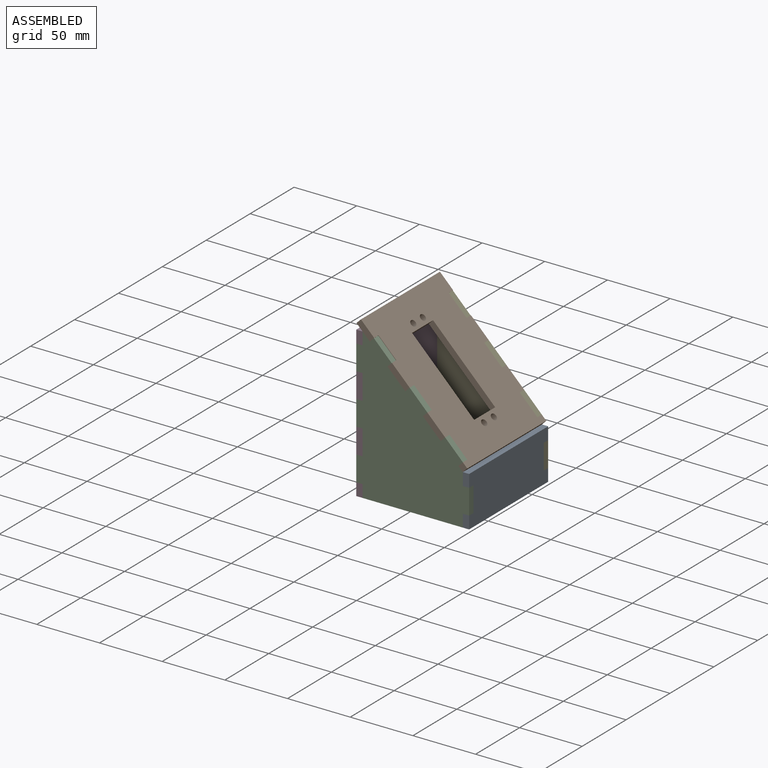
[diagram: assembled view]
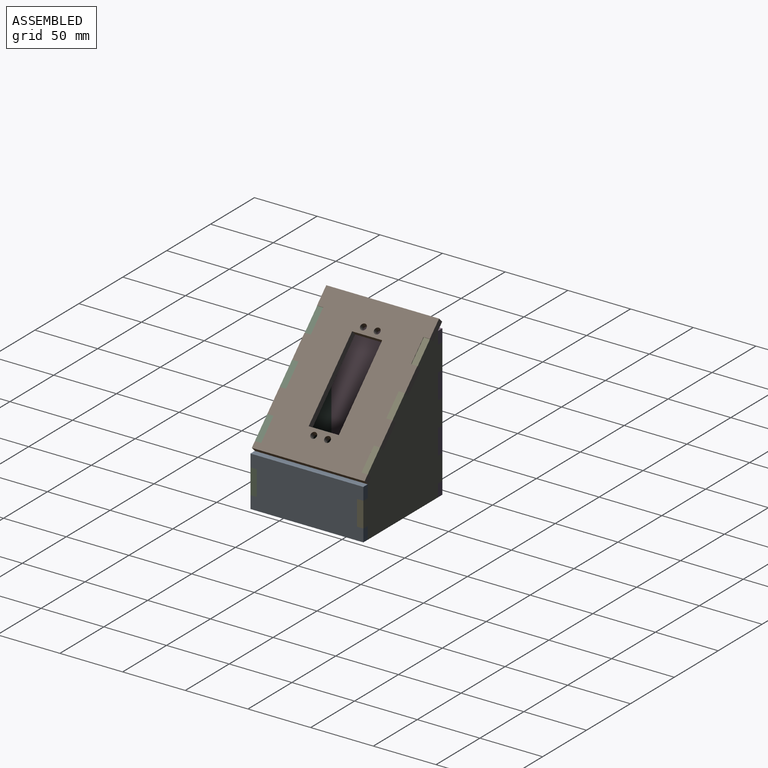
[diagram: assembled view, second angle]
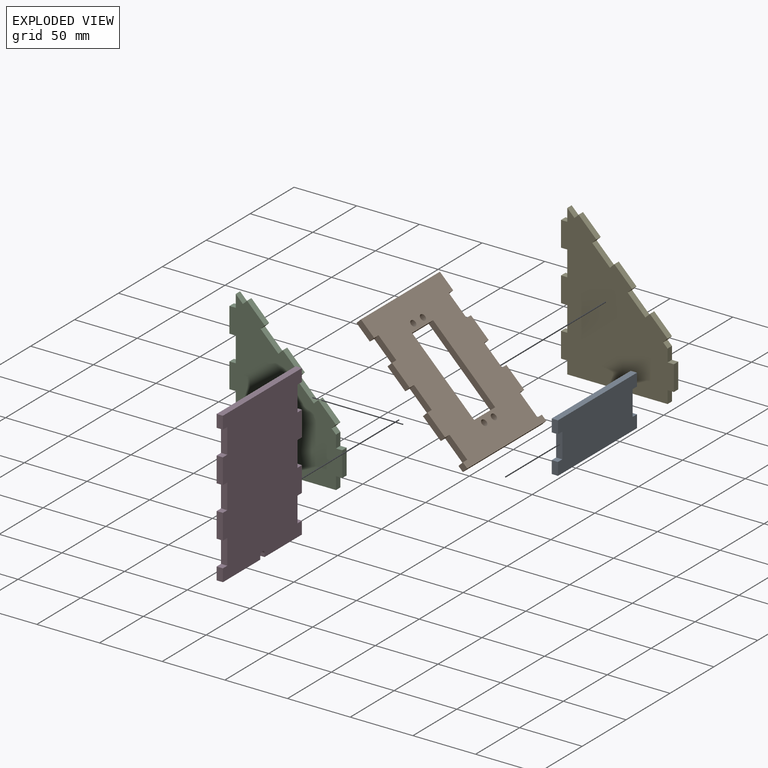
[diagram: exploded view]
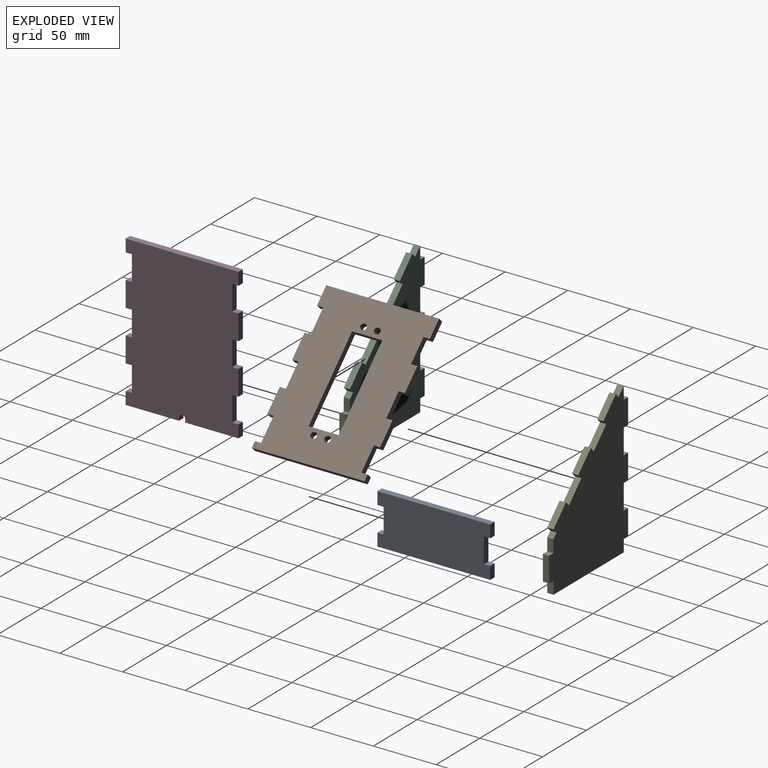
[diagram: exploded view, second angle]
ASSEMBLY  parts=5 mates=4
PART A: 14 faces, bbox 5x90x40 mm
  f0: plane 90x5mm, normal (0,0,-1), area 450mm2, adj f1,f11,f12,f13
  f1: plane 10x5mm, normal (0,1,0), area 50mm2, adj f0,f2,f12,f13
  f2: plane 5x5mm, normal (0,0,1), area 25mm2, adj f1,f3,f12,f13
  f3: plane 20x5mm, normal (0,1,0), area 100mm2, adj f2,f4,f12,f13
  f4: plane 5x5mm, normal (0,0,-1), area 25mm2, adj f3,f5,f12,f13
  f5: plane 10x5mm, normal (0,1,0), area 50mm2, adj f4,f6,f12,f13
  f6: plane 90x5mm, normal (0,0,1), area 450mm2, adj f5,f7,f12,f13
  f7: plane 10x5mm, normal (0,-1,0), area 50mm2, adj f6,f8,f12,f13
  f8: plane 5x5mm, normal (0,0,-1), area 25mm2, adj f7,f9,f12,f13
  f9: plane 20x5mm, normal (0,-1,0), area 100mm2, adj f8,f10,f12,f13
  f10: plane 5x5mm, normal (0,0,1), area 25mm2, adj f9,f11,f12,f13
  f11: plane 10x5mm, normal (0,-1,0), area 50mm2, adj f0,f10,f12,f13
  f12: plane 90x40mm, normal (1,0,0), area 3400mm2, adj f0,f1,f2,f3,f4,f5,f6,f7
  f13: plane 90x40mm, normal (-1,0,0), area 3400mm2, adj f0,f1,f2,f3,f4,f5,f6,f7
PART B: 38 faces, bbox 120x90x5 mm
  f0: plane 120x90mm, normal (0,0,1), area 8441.5mm2, adj f2,f3,f4,f5,f6,f7,f8,f9
  f1: plane 120x90mm, normal (0,0,-1), area 8441.5mm2, adj f2,f3,f4,f5,f6,f7,f8,f9
  f2: plane 5x5mm, normal (1,0,0), area 25mm2, adj f0,f1,f3,f29
  f3: plane 20x5mm, normal (0,-1,0), area 100mm2, adj f0,f1,f2,f4
  f4: plane 5x5mm, normal (-1,0,0), area 25mm2, adj f0,f1,f3,f5
  f5: plane 5x5mm, normal (0,-1,0), area 25mm2, adj f0,f1,f4,f6
  f6: plane 90x5mm, normal (1,0,0), area 450mm2, adj f0,f1,f5,f7
  f7: plane 5x5mm, normal (0,1,0), area 25mm2, adj f0,f1,f6,f8
  f8: plane 5x5mm, normal (-1,0,0), area 25mm2, adj f0,f1,f7,f9
  f9: plane 20x5mm, normal (0,1,0), area 100mm2, adj f0,f1,f8,f10
  f10: plane 5x5mm, normal (1,0,0), area 25mm2, adj f0,f1,f9,f11
  f11: plane 20x5mm, normal (0,1,0), area 100mm2, adj f0,f1,f10,f12
  f12: plane 5x5mm, normal (-1,0,0), area 25mm2, adj f0,f1,f11,f13
  f13: plane 20x5mm, normal (0,1,0), area 100mm2, adj f0,f1,f12,f14
  f14: plane 5x5mm, normal (1,0,0), area 25mm2, adj f0,f1,f13,f15
  f15: plane 20x5mm, normal (0,1,0), area 100mm2, adj f0,f1,f14,f16
  f16: plane 5x5mm, normal (-1,0,0), area 25mm2, adj f0,f1,f15,f17
  f17: plane 20x5mm, normal (0,1,0), area 100mm2, adj f0,f1,f16,f18
  f18: plane 5x5mm, normal (1,0,0), area 25mm2, adj f0,f1,f17,f19
  f19: plane 15x5mm, normal (0,1,0), area 75mm2, adj f0,f1,f18,f20
  f20: plane 90x5mm, normal (-1,0,0), area 450mm2, adj f0,f1,f19,f21
  f21: plane 15x5mm, normal (0,-1,0), area 75mm2, adj f0,f1,f20,f22
  f22: plane 5x5mm, normal (1,0,0), area 25mm2, adj f0,f1,f21,f23
  f23: plane 20x5mm, normal (0,-1,0), area 100mm2, adj f0,f1,f22,f24
  f24: plane 5x5mm, normal (-1,0,0), area 25mm2, adj f0,f1,f23,f25
  f25: plane 20x5mm, normal (0,-1,0), area 100mm2, adj f0,f1,f24,f26
  f26: plane 5x5mm, normal (1,0,0), area 25mm2, adj f0,f1,f25,f27
  f27: plane 20x5mm, normal (0,-1,0), area 100mm2, adj f0,f1,f26,f28
  f28: plane 5x5mm, normal (-1,0,0), area 25mm2, adj f0,f1,f27,f29
  f29: plane 20x5mm, normal (0,-1,0), area 100mm2, adj f0,f1,f2,f28
  f30: cylinder r=2.5mm len=5mm, axis (0,0,1), area 78.5mm2, adj f0,f1
  f31: cylinder r=2.5mm len=5mm, axis (0,0,1), area 78.5mm2, adj f0,f1
  f32: cylinder r=2.5mm len=5mm, axis (0,0,1), area 78.5mm2, adj f0,f1
  f33: plane 24x5mm, normal (-1,0,0), area 120mm2, adj f0,f1,f34,f36
  f34: plane 70x5mm, normal (0,-1,0), area 350mm2, adj f0,f1,f33,f35
  f35: plane 24x5mm, normal (1,0,0), area 120mm2, adj f0,f1,f34,f36
  f36: plane 70x5mm, normal (0,1,0), area 350mm2, adj f0,f1,f33,f35
  f37: cylinder r=2.5mm len=5mm, axis (0,0,1), area 78.5mm2, adj f0,f1
PART C: 34 faces, bbox 90x120x5 mm
  f0: plane 14.14x14.14mm, normal (0.71,0.71,0), area 100mm2, adj f23,f24,f30,f31
  f1: plane 14.14x14.14mm, normal (0.71,0.71,0), area 100mm2, adj f23,f24,f27,f28
  f2: plane 5x3.54mm, normal (0.71,0.71,0), area 25mm2, adj f10,f23,f24,f25
  f3: plane 5x5mm, normal (0,-1,0), area 25mm2, adj f4,f22,f23,f24
  f4: plane 10x5mm, normal (-1,0,0), area 50mm2, adj f3,f5,f23,f24
  f5: plane 80x5mm, normal (0,-1,0), area 400mm2, adj f4,f6,f23,f24
  f6: plane 10x5mm, normal (1,0,0), area 50mm2, adj f5,f7,f23,f24
  f7: plane 5x5mm, normal (0,-1,0), area 25mm2, adj f6,f8,f23,f24
  f8: plane 20x5mm, normal (1,0,0), area 100mm2, adj f7,f9,f23,f24
  f9: plane 5x5mm, normal (0,1,0), area 25mm2, adj f8,f10,f23,f24
  f10: plane 10x5mm, normal (1,0,0), area 50mm2, adj f2,f9,f23,f24
  f11: plane 5.75x5.75mm, normal (0.71,0.71,0), area 40.7mm2, adj f12,f23,f24,f33
  f12: plane 10x5mm, normal (-1,0,0), area 50mm2, adj f11,f13,f23,f24
  f13: plane 5x5mm, normal (0,1,0), area 25mm2, adj f12,f14,f23,f24
  f14: plane 20x5mm, normal (-1,0,0), area 100mm2, adj f13,f15,f23,f24
  f15: plane 5x5mm, normal (0,-1,0), area 25mm2, adj f14,f16,f23,f24
  f16: plane 20x5mm, normal (-1,0,0), area 100mm2, adj f15,f17,f23,f24
  f17: plane 5x5mm, normal (0,1,0), area 25mm2, adj f16,f18,f23,f24
  f18: plane 20x5mm, normal (-1,0,0), area 100mm2, adj f17,f19,f23,f24
  f19: plane 5x5mm, normal (0,-1,0), area 25mm2, adj f18,f20,f23,f24
  f20: plane 20x5mm, normal (-1,0,0), area 100mm2, adj f19,f21,f23,f24
  f21: plane 5x5mm, normal (0,1,0), area 25mm2, adj f20,f22,f23,f24
  f22: plane 20x5mm, normal (-1,0,0), area 100mm2, adj f3,f21,f23,f24
  f23: plane 120x90mm, normal (0,0,1), area 7093mm2, adj f0,f1,f2,f3,f4,f5,f6,f7
  f24: plane 120x90mm, normal (0,0,-1), area 7093mm2, adj f0,f1,f2,f3,f4,f5,f6,f7
  f25: plane 5x3.54mm, normal (0.71,-0.71,0), area 25mm2, adj f2,f23,f24,f26
  f26: plane 14.14x14.14mm, normal (0.71,0.71,0), area 100mm2, adj f23,f24,f25,f27
  f27: plane 5x3.54mm, normal (-0.71,0.71,0), area 25mm2, adj f1,f23,f24,f26
  f28: plane 5x3.54mm, normal (0.71,-0.71,0), area 25mm2, adj f1,f23,f24,f29
  f29: plane 14.14x14.14mm, normal (0.71,0.71,0), area 100mm2, adj f23,f24,f28,f30
  f30: plane 5x3.54mm, normal (-0.71,0.71,0), area 25mm2, adj f0,f23,f24,f29
  f31: plane 5x3.29mm, normal (0.71,-0.71,0), area 23.3mm2, adj f0,f23,f24,f32
  f32: plane 14.14x14.14mm, normal (0.71,0.71,0), area 100mm2, adj f23,f24,f31,f33
  f33: plane 5x3.29mm, normal (-0.71,0.71,0), area 23.3mm2, adj f11,f23,f24,f32
PART D: 34 faces, bbox 5x90x120 mm
  f0: plane 42.5x5mm, normal (0,0,-1), area 212.5mm2, adj f1,f19,f30,f31
  f1: plane 120x90mm, normal (-1,0,0), area 10177.7mm2, adj f0,f2,f3,f4,f5,f6,f7,f8
  f2: plane 5x5mm, normal (0,0,1), area 25mm2, adj f1,f3,f29,f30
  f3: plane 20x5mm, normal (0,1,0), area 100mm2, adj f1,f2,f4,f30
  f4: plane 5x5mm, normal (0,0,-1), area 25mm2, adj f1,f3,f5,f30
  f5: plane 10x5mm, normal (0,1,0), area 50mm2, adj f1,f4,f6,f30
  f6: plane 90x5mm, normal (0,0,1), area 450mm2, adj f1,f5,f7,f30
  f7: plane 10x5mm, normal (0,-1,0), area 50mm2, adj f1,f6,f8,f30
  f8: plane 5x5mm, normal (0,0,-1), area 25mm2, adj f1,f7,f9,f30
  f9: plane 20x5mm, normal (0,-1,0), area 100mm2, adj f1,f8,f10,f30
  f10: plane 5x5mm, normal (0,0,1), area 25mm2, adj f1,f9,f11,f30
  f11: plane 20x5mm, normal (0,-1,0), area 100mm2, adj f1,f10,f12,f30
  f12: plane 5x5mm, normal (0,0,-1), area 25mm2, adj f1,f11,f13,f30
  f13: plane 20x5mm, normal (0,-1,0), area 100mm2, adj f1,f12,f14,f30
  f14: plane 5x5mm, normal (0,0,1), area 25mm2, adj f1,f13,f15,f30
  f15: plane 20x5mm, normal (0,-1,0), area 100mm2, adj f1,f14,f16,f30
  f16: plane 5x5mm, normal (0,0,-1), area 25mm2, adj f1,f15,f17,f30
  f17: plane 20x5mm, normal (0,-1,0), area 100mm2, adj f1,f16,f18,f30
  f18: plane 5x5mm, normal (0,0,1), area 25mm2, adj f1,f17,f19,f30
  f19: plane 10x5mm, normal (0,-1,0), area 50mm2, adj f0,f1,f18,f30
  f20: plane 42.5x5mm, normal (0,0,-1), area 212.5mm2, adj f1,f21,f30,f33
  f21: plane 10x5mm, normal (0,1,0), area 50mm2, adj f1,f20,f22,f30
  f22: plane 5x5mm, normal (0,0,1), area 25mm2, adj f1,f21,f23,f30
  f23: plane 20x5mm, normal (0,1,0), area 100mm2, adj f1,f22,f24,f30
  f24: plane 5x5mm, normal (0,0,-1), area 25mm2, adj f1,f23,f25,f30
  f25: plane 20x5mm, normal (0,1,0), area 100mm2, adj f1,f24,f26,f30
  f26: plane 5x5mm, normal (0,0,1), area 25mm2, adj f1,f25,f27,f30
  f27: plane 20x5mm, normal (0,1,0), area 100mm2, adj f1,f26,f28,f30
  f28: plane 5x5mm, normal (0,0,-1), area 25mm2, adj f1,f27,f29,f30
  f29: plane 20x5mm, normal (0,1,0), area 100mm2, adj f1,f2,f28,f30
  f30: plane 120x90mm, normal (1,0,0), area 10177.7mm2, adj f0,f2,f3,f4,f5,f6,f7,f8
  f31: plane 5x2.5mm, normal (0,1,0), area 12.5mm2, adj f0,f1,f30,f32
  f32: cylinder r=2.5mm len=5mm, axis (-1,0,0), area 39.3mm2, adj f1,f30,f31,f33
  f33: plane 5x2.5mm, normal (0,-1,0), area 12.5mm2, adj f1,f20,f30,f32
PART E: same geometry as C
PLACE A t=(45.61,-17.59,-28.05)mm
PLACE B rot(axis=(0,1,0),45deg) t=(45.61,-17.59,11.95)mm
PLACE C rot(axis=(1,0,0),90deg) t=(-34.39,-17.59,-28.05)mm
PLACE D t=(-39.39,62.41,-28.05)mm
PLACE E rot(axis=(1,0,0),90deg) t=(-34.39,67.41,-28.05)mm
MATE fastened E.f24 <-> D.f5  axis (0,1,0) through (-34.39,67.41,91.95)mm
MATE fastened C.f23 <-> A.f7  axis (0,-1,0) through (50.61,-22.59,1.95)mm
MATE fastened D.f7 <-> C.f23  axis (0,-1,0) through (-34.39,-22.59,91.95)mm
MATE ball B.f29 <-> C.f23  axis (0,-1,0) through (31.47,-22.59,33.17)mm
